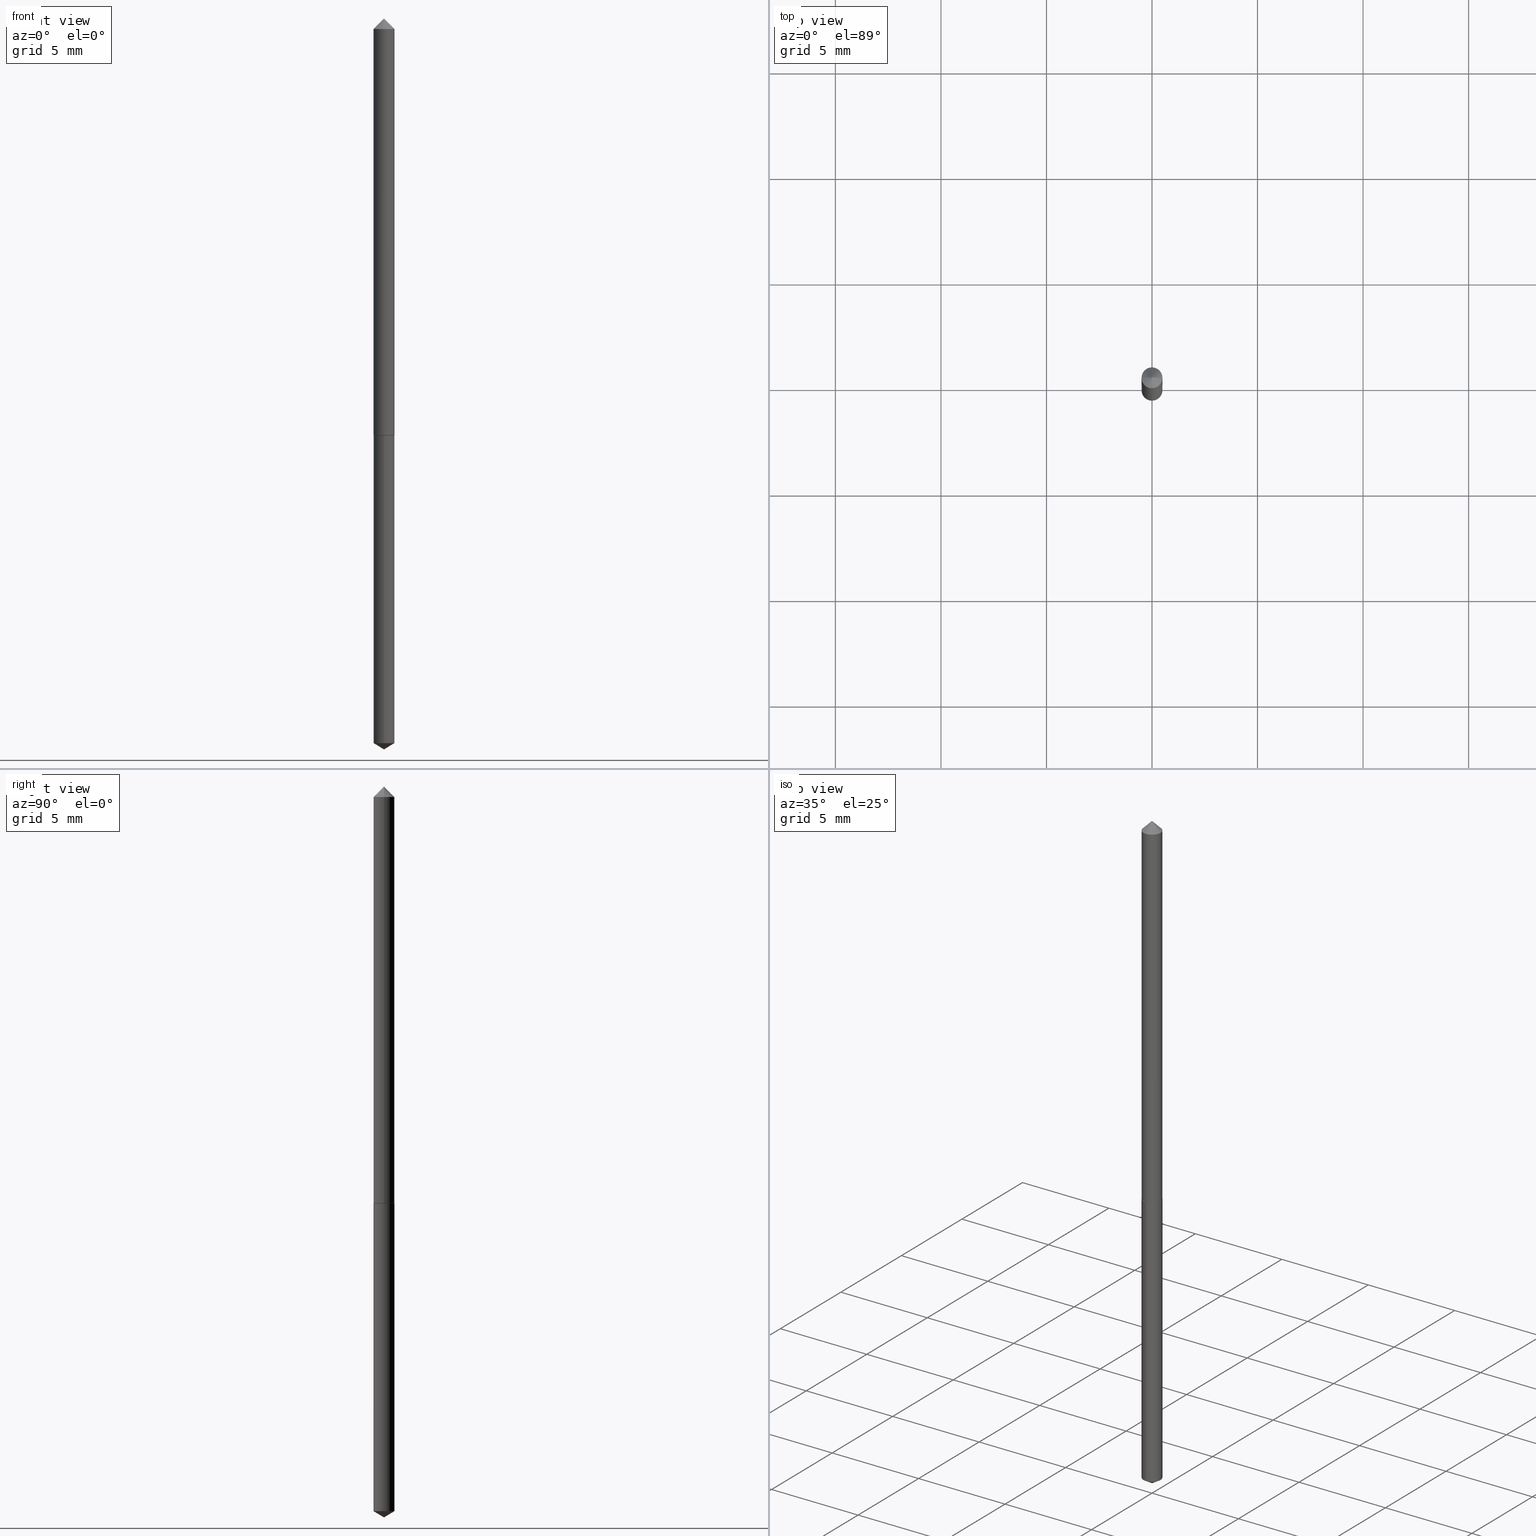
[diagram: canonical four-view strip — front | top / right | iso, engineering-drawing reading convention]
A machine part, canonical four-view strip (front | top / right | iso — engineering-drawing reading convention). The complete STEP part file that produces these views, byte-faithful:
ISO-10303-21;
HEADER;
FILE_DESCRIPTION (( 'STEP AP203' ),
    '1' );
FILE_NAME ('51061.STEP',
    '2024-04-22T18:21:17',
    ( '' ),
    ( '' ),
    'SwSTEP 2.0',
    'SolidWorks 2023',
    '' );
FILE_SCHEMA (( 'CONFIG_CONTROL_DESIGN' ));
ENDSEC;

DATA;
#1 = CARTESIAN_POINT ( 'NONE',  ( -1.361677722148628817E-16, -0.01950000000000275124, -0.7889999999999999236 ) ) ;
#2 = DIRECTION ( 'NONE',  ( -2.445437279729985781E-29, 3.491526486521295773E-15, 1.000000000000000000 ) ) ;
#3 = ORIENTED_EDGE ( 'NONE', *, *, #63, .F. ) ;
#4 = ADVANCED_FACE ( 'NONE', ( #228 ), #235, .F. ) ;
#5 = CARTESIAN_POINT ( 'NONE',  ( 1.928252153676979944E-29, -2.753033035677819991E-15, -0.7884999999999999787 ) ) ;
#6 = EDGE_LOOP ( 'NONE', ( #335, #288 ) ) ;
#7 = DIRECTION ( 'NONE',  ( -2.445437279729985501E-29, 3.491526486521295773E-15, 1.000000000000000000 ) ) ;
#8 = PRODUCT_DEFINITION ( 'UNKNOWN', '', #292, #323 ) ;
#9 = LOCAL_TIME ( 14, 21, 17.00000000000000000, #19 ) ;
#10 = CYLINDRICAL_SURFACE ( 'NONE', #319, 0.01949999999999999997 ) ;
#11 = COORDINATED_UNIVERSAL_TIME_OFFSET ( 5, 0, .BEHIND. ) ;
#12 = EDGE_CURVE ( 'NONE', #149, #59, #290, .T. ) ;
#13 = LINE ( 'NONE', #274, #56 ) ;
#14 = CARTESIAN_POINT ( 'NONE',  ( 7.642090019328602662E-31, -1.091087918388490267E-16, -0.03125000000000020817 ) ) ;
#15 = AXIS2_PLACEMENT_3D ( 'NONE', #180, #129, #36 ) ;
#16 = AXIS2_PLACEMENT_3D ( 'NONE', #5, #119, #81 ) ;
#17 = EDGE_CURVE ( 'NONE', #92, #176, #13, .T. ) ;
#18 = ORIENTED_EDGE ( 'NONE', *, *, #300, .F. ) ;
#19 = COORDINATED_UNIVERSAL_TIME_OFFSET ( 5, 0, .BEHIND. ) ;
#20 = ORIENTED_EDGE ( 'NONE', *, *, #308, .T. ) ;
#21 = CARTESIAN_POINT ( 'NONE',  ( 1.929474888080072746E-29, -2.754778776347241889E-15, -0.7889999999999999236 ) ) ;
#22 = CIRCLE ( 'NONE', #211, 0.01949999999999999997 ) ;
#23 = ORIENTED_EDGE ( 'NONE', *, *, #221, .T. ) ;
#24 = CARTESIAN_POINT ( 'NONE',  ( 7.642090019328602662E-31, -1.091087918388490267E-16, -0.03125000000000020817 ) ) ;
#25 = CALENDAR_DATE ( 2024, 22, 4 ) ;
#26 = CALENDAR_DATE ( 2024, 22, 4 ) ;
#27 = APPLICATION_PROTOCOL_DEFINITION ( 'international standard', 'config_control_design', 1994, #253 ) ;
#28 = AXIS2_PLACEMENT_3D ( 'NONE', #342, #199, #147 ) ;
#29 = DIRECTION ( 'NONE',  ( 6.982962677686265922E-15, 1.000000000000000000, -3.491526486521295773E-15 ) ) ;
#30 = AXIS2_PLACEMENT_3D ( 'NONE', #295, #94, #326 ) ;
#31 = ORIENTED_EDGE ( 'NONE', *, *, #55, .T. ) ;
#32 = DIRECTION ( 'NONE',  ( -2.445437279729985781E-29, 3.491526486521295773E-15, 1.000000000000000000 ) ) ;
#33 = AXIS2_PLACEMENT_3D ( 'NONE', #256, #34, #86 ) ;
#34 = DIRECTION ( 'NONE',  ( -2.445468806185136597E-29, 3.491481338843145583E-15, 1.000000000000000000 ) ) ;
#35 = ORIENTED_EDGE ( 'NONE', *, *, #358, .F. ) ;
#36 = DIRECTION ( 'NONE',  ( 1.000000000000000000, -6.982962677686265922E-15, 4.876176775795935793E-29 ) ) ;
#37 = SHAPE_DEFINITION_REPRESENTATION ( #49, #131 ) ;
#38 = PERSON_AND_ORGANIZATION_ROLE ( 'classification_officer' ) ;
#39 = DIRECTION ( 'NONE',  ( -1.000000000000000000, 6.982962677686265922E-15, 0.000000000000000000 ) ) ;
#40 = APPROVAL ( #278, 'UNSPECIFIED' ) ;
#41 = AXIS2_PLACEMENT_3D ( 'NONE', #286, #121, #229 ) ;
#42 = DIRECTION ( 'NONE',  ( -6.982962677686264344E-15, -1.000000000000000000, 0.000000000000000000 ) ) ;
#43 = EDGE_CURVE ( 'NONE', #176, #282, #237, .T. ) ;
#44 = FACE_OUTER_BOUND ( 'NONE', #95, .T. ) ;
#45 = PERSON ( 'UNSPECIFIED', 'UNSPECIFIED', 'UNSPECIFIED', ('UNSPECIFIED'), ('UNSPECIFIED'), ('UNSPECIFIED') ) ;
#46 = ORIENTED_EDGE ( 'NONE', *, *, #178, .T. ) ;
#47 = EDGE_LOOP ( 'NONE', ( #250, #210, #298, #146 ) ) ;
#48 = APPROVAL_ROLE ( '' ) ;
#49 = PRODUCT_DEFINITION_SHAPE ( 'NONE', 'NONE',  #8 ) ;
#50 = DIRECTION ( 'NONE',  ( 1.000000000000000000, 0.000000000000000000, 0.000000000000000000 ) ) ;
#51 = VERTEX_POINT ( 'NONE', #330 ) ;
#52 = CC_DESIGN_PERSON_AND_ORGANIZATION_ASSIGNMENT ( #302, #187, ( #8 ) ) ;
#53 = DIRECTION ( 'NONE',  ( -2.445437279729985781E-29, 3.491526486521295773E-15, 1.000000000000000000 ) ) ;
#54 = LENGTH_MEASURE_WITH_UNIT ( LENGTH_MEASURE( 0.02539999999999999897 ), #102 );
#55 = EDGE_CURVE ( 'NONE', #159, #282, #71, .T. ) ;
#56 = VECTOR ( 'NONE', #132, 39.37007874015748143 ) ;
#57 = VECTOR ( 'NONE', #350, 39.37007874015748143 ) ;
#58 = CC_DESIGN_PERSON_AND_ORGANIZATION_ASSIGNMENT ( #216, #143, ( #292 ) ) ;
#59 = VERTEX_POINT ( 'NONE', #188 ) ;
#60 = ADVANCED_FACE ( 'NONE', ( #304 ), #87, .T. ) ;
#61 = CONICAL_SURFACE ( 'NONE', #30, 65.52281426576830370, 1.029744258676653645 ) ;
#62 = ORIENTED_EDGE ( 'NONE', *, *, #289, .T. ) ;
#63 = EDGE_CURVE ( 'NONE', #59, #341, #268, .T. ) ;
#64 = APPROVAL_STATUS ( 'not_yet_approved' ) ;
#65 = EDGE_CURVE ( 'NONE', #282, #176, #193, .T. ) ;
#66 = FACE_OUTER_BOUND ( 'NONE', #82, .T. ) ;
#67 = CARTESIAN_POINT ( 'NONE',  ( 1.928252153676979944E-29, -2.753033035677819991E-15, -0.7884999999999999787 ) ) ;
#68 = ORIENTED_EDGE ( 'NONE', *, *, #74, .T. ) ;
#69 = AXIS2_PLACEMENT_3D ( 'NONE', #277, #144, #105 ) ;
#70 = LINE ( 'NONE', #160, #127 ) ;
#71 = LINE ( 'NONE', #299, #196 ) ;
#72 = ORIENTED_EDGE ( 'NONE', *, *, #142, .T. ) ;
#73 = CARTESIAN_POINT ( 'NONE',  ( 0.000000000000000000, 0.000000000000000000, 0.000000000000000000 ) ) ;
#74 = EDGE_CURVE ( 'NONE', #149, #341, #271, .T. ) ;
#75 = CARTESIAN_POINT ( 'NONE',  ( 1.929474888080072746E-29, -2.754778776347241889E-15, -0.7889999999999999236 ) ) ;
#76 = CALENDAR_DATE ( 2024, 22, 4 ) ;
#77 = ADVANCED_FACE ( 'NONE', ( #66 ), #151, .T. ) ;
#78 = DIRECTION ( 'NONE',  ( -2.445468806185136877E-29, 3.491481338843145188E-15, 1.000000000000000000 ) ) ;
#79 = CC_DESIGN_APPROVAL ( #40, ( #8 ) ) ;
#80 = CARTESIAN_POINT ( 'NONE',  ( 0.01950000000000009365, -2.889200807892702791E-15, -0.7884999999999999787 ) ) ;
#81 = DIRECTION ( 'NONE',  ( 1.000000000000000000, -6.982962677686273810E-15, 0.000000000000000000 ) ) ;
#82 = EDGE_LOOP ( 'NONE', ( #284, #245, #362 ) ) ;
#83 = ORIENTED_EDGE ( 'NONE', *, *, #74, .F. ) ;
#84 = CONICAL_SURFACE ( 'NONE', #296, 0.01950000000000009365, 0.7853981633973118326 ) ;
#85 = DATE_AND_TIME ( #226, #194 ) ;
#86 = DIRECTION ( 'NONE',  ( 1.000000000000000000, -6.982962677686273810E-15, 0.000000000000000000 ) ) ;
#87 = CONICAL_SURFACE ( 'NONE', #33, 0.01950000000000009365, 0.7853981633973118326 ) ;
#88 = DIRECTION ( 'NONE',  ( -2.445468806185136597E-29, 3.491481338843145583E-15, 1.000000000000000000 ) ) ;
#89 = LOCAL_TIME ( 14, 21, 17.00000000000000000, #169 ) ;
#90 = DIRECTION ( 'NONE',  ( -2.445468806185136597E-29, 3.491481338843145583E-15, 1.000000000000000000 ) ) ;
#91 = UNCERTAINTY_MEASURE_WITH_UNIT (LENGTH_MEASURE( 1.000000000000000082E-05 ), #244, 'distance_accuracy_value', 'NONE');
#92 = VERTEX_POINT ( 'NONE', #155 ) ;
#93 = PRODUCT ( '51061', '51061', '', ( #338 ) ) ;
#94 = DIRECTION ( 'NONE',  ( -2.445437279729985781E-29, 3.491526486521295773E-15, 1.000000000000000000 ) ) ;
#95 = EDGE_LOOP ( 'NONE', ( #173, #23, #243, #35 ) ) ;
#96 = VECTOR ( 'NONE', #322, 39.37007874015748854 ) ;
#97 = APPROVAL_PERSON_ORGANIZATION ( #166, #152, #48 ) ;
#98 = DIRECTION ( 'NONE',  ( -2.445437279729985501E-29, 3.491526486521295773E-15, 1.000000000000000000 ) ) ;
#99 = FACE_OUTER_BOUND ( 'NONE', #139, .T. ) ;
#100 = CARTESIAN_POINT ( 'NONE',  ( 0.000000000000000000, 0.000000000000000000, 0.000000000000000000 ) ) ;
#101 = ORIENTED_EDGE ( 'NONE', *, *, #337, .F. ) ;
#102 =( LENGTH_UNIT ( ) NAMED_UNIT ( * ) SI_UNIT ( $, .METRE. ) );
#103 = ORIENTED_EDGE ( 'NONE', *, *, #358, .T. ) ;
#104 = FACE_OUTER_BOUND ( 'NONE', #329, .T. ) ;
#105 = DIRECTION ( 'NONE',  ( 1.000000000000000000, -6.982962677686273810E-15, 0.000000000000000000 ) ) ;
#106 = CC_DESIGN_PERSON_AND_ORGANIZATION_ASSIGNMENT ( #307, #170, ( #93 ) ) ;
#107 = CLOSED_SHELL ( 'NONE', ( #305, #218, #236, #287, #168 ) ) ;
#108 = DIRECTION ( 'NONE',  ( 0.000000000000000000, 0.000000000000000000, 1.000000000000000000 ) ) ;
#109 = LOCAL_TIME ( 14, 21, 17.00000000000000000, #11 ) ;
#110 =( NAMED_UNIT ( * ) SI_UNIT ( $, .STERADIAN. ) SOLID_ANGLE_UNIT ( ) );
#111 = DIRECTION ( 'NONE',  ( -0.7071067811864509833, 7.493145998870005484E-15, 0.7071067811866440511 ) ) ;
#112 = CARTESIAN_POINT ( 'NONE',  ( 1.929474888080072746E-29, -2.754778776347241889E-15, -0.7889999999999999236 ) ) ;
#113 = FACE_OUTER_BOUND ( 'NONE', #200, .T. ) ;
#114 = DIRECTION ( 'NONE',  ( -6.982962677686264344E-15, -1.000000000000000000, 0.000000000000000000 ) ) ;
#115 = VERTEX_POINT ( 'NONE', #128 ) ;
#116 = CIRCLE ( 'NONE', #69, 0.01950000000000009365 ) ;
#117 = LINE ( 'NONE', #347, #57 ) ;
#118 = DIMENSIONAL_EXPONENTS ( 1.000000000000000000, 0.000000000000000000, 0.000000000000000000, 0.000000000000000000, 0.000000000000000000, 0.000000000000000000, 0.000000000000000000 ) ;
#119 = DIRECTION ( 'NONE',  ( -2.445468806185136597E-29, 3.491481338843145583E-15, 1.000000000000000000 ) ) ;
#120 = DIRECTION ( 'NONE',  ( 0.7071067811864509833, -2.468850131081245741E-15, 0.7071067811866440511 ) ) ;
#121 = DIRECTION ( 'NONE',  ( -2.445437279729985781E-29, 3.491526486521295773E-15, 1.000000000000000000 ) ) ;
#122 = CALENDAR_DATE ( 2024, 22, 4 ) ;
#123 = DATE_AND_TIME ( #122, #109 ) ;
#124 = CARTESIAN_POINT ( 'NONE',  ( 0.01950000000000009365, -2.889200807892702791E-15, -0.7884999999999999787 ) ) ;
#125 = EDGE_CURVE ( 'NONE', #341, #59, #291, .T. ) ;
#126 = VECTOR ( 'NONE', #7, 39.37007874015748143 ) ;
#127 = VECTOR ( 'NONE', #98, 39.37007874015748143 ) ;
#128 = CARTESIAN_POINT ( 'NONE',  ( 0.01900000000000005851, -2.887455067223281682E-15, -0.7890000000000001457 ) ) ;
#129 = DIRECTION ( 'NONE',  ( -2.438088387897960049E-29, 3.491481338843145188E-15, 1.000000000000000000 ) ) ;
#130 = ORIENTED_EDGE ( 'NONE', *, *, #63, .T. ) ;
#131 = ADVANCED_BREP_SHAPE_REPRESENTATION ( '51061', ( #258, #141, #165 ), #317 ) ;
#132 = DIRECTION ( 'NONE',  ( -0.7071067811865453523, 2.468850131082234184E-15, -0.7071067811865496822 ) ) ;
#133 = CARTESIAN_POINT ( 'NONE',  ( -1.361677722148488301E-16, -0.01950000000000476352, -1.363283217928962454 ) ) ;
#134 = DIRECTION ( 'NONE',  ( -2.445468806185136597E-29, 3.491481338843145583E-15, 1.000000000000000000 ) ) ;
#135 = DIRECTION ( 'NONE',  ( -2.445468806185136877E-29, 3.491481338843145188E-15, 1.000000000000000000 ) ) ;
#136 = CC_DESIGN_APPROVAL ( #294, ( #153 ) ) ;
#137 = COORDINATED_UNIVERSAL_TIME_OFFSET ( 5, 0, .BEHIND. ) ;
#138 = CARTESIAN_POINT ( 'NONE',  ( -0.01950000000000009365, -2.614477202204599937E-15, -0.7884999999999999787 ) ) ;
#139 = EDGE_LOOP ( 'NONE', ( #189, #20, #357 ) ) ;
#140 = EDGE_LOOP ( 'NONE', ( #198, #62 ) ) ;
#141 = MANIFOLD_SOLID_BREP ( 'Body-Move/Copy2[2]', #281 ) ;
#142 = EDGE_CURVE ( 'NONE', #59, #275, #231, .T. ) ;
#143 = PERSON_AND_ORGANIZATION_ROLE ( 'creator' ) ;
#144 = DIRECTION ( 'NONE',  ( -2.445468806185136597E-29, 3.491481338843145583E-15, 1.000000000000000000 ) ) ;
#145 = VECTOR ( 'NONE', #120, 39.37007874015748143 ) ;
#146 = ORIENTED_EDGE ( 'NONE', *, *, #55, .F. ) ;
#147 = DIRECTION ( 'NONE',  ( 1.000000000000000000, -6.982962677686267499E-15, 4.876176775795936353E-29 ) ) ;
#148 = AXIS2_PLACEMENT_3D ( 'NONE', #100, #339, #279 ) ;
#149 = VERTEX_POINT ( 'NONE', #202 ) ;
#150 = EDGE_LOOP ( 'NONE', ( #283, #46, #18, #331 ) ) ;
#151 = CONICAL_SURFACE ( 'NONE', #246, 0.01950000000000000344, 0.7853981633974452814 ) ;
#152 = APPROVAL ( #363, 'UNSPECIFIED' ) ;
#153 = SECURITY_CLASSIFICATION ( '', '', #204 ) ;
#154 = PERSON_AND_ORGANIZATION_ROLE ( 'design_supplier' ) ;
#155 = CARTESIAN_POINT ( 'NONE',  ( 2.873425847267554913E-31, -4.102490573140724439E-17, -0.01175000000000007983 ) ) ;
#156 = FACE_OUTER_BOUND ( 'NONE', #140, .T. ) ;
#157 = CC_DESIGN_PERSON_AND_ORGANIZATION_ASSIGNMENT ( #345, #38, ( #153 ) ) ;
#158 = AXIS2_PLACEMENT_3D ( 'NONE', #293, #88, #240 ) ;
#159 = VERTEX_POINT ( 'NONE', #124 ) ;
#160 = CARTESIAN_POINT ( 'NONE',  ( -1.361677722148628817E-16, -0.01950000000000275124, -0.7889999999999999236 ) ) ;
#161 = PERSON_AND_ORGANIZATION ( #45, #223 ) ;
#162 = EDGE_LOOP ( 'NONE', ( #208, #72, #222, #266 ) ) ;
#163 = ORIENTED_EDGE ( 'NONE', *, *, #12, .F. ) ;
#164 = DIRECTION ( 'NONE',  ( 1.000000000000000000, -6.982962677686260400E-15, 0.000000000000000000 ) ) ;
#165 = AXIS2_PLACEMENT_3D ( 'NONE', #73, #108, #50 ) ;
#166 = PERSON_AND_ORGANIZATION ( #45, #223 ) ;
#167 = DIRECTION ( 'NONE',  ( -6.982962677686264344E-15, -1.000000000000000000, 3.468864327941600919E-15 ) ) ;
#168 = ADVANCED_FACE ( 'NONE', ( #156 ), #212, .F. ) ;
#169 = COORDINATED_UNIVERSAL_TIME_OFFSET ( 5, 0, .BEHIND. ) ;
#170 = PERSON_AND_ORGANIZATION_ROLE ( 'design_owner' ) ;
#171 = AXIS2_PLACEMENT_3D ( 'NONE', #234, #90, #206 ) ;
#172 = LINE ( 'NONE', #138, #257 ) ;
#173 = ORIENTED_EDGE ( 'NONE', *, *, #178, .F. ) ;
#174 = COORDINATED_UNIVERSAL_TIME_OFFSET ( 5, 0, .BEHIND. ) ;
#175 = ADVANCED_FACE ( 'NONE', ( #44 ), #84, .T. ) ;
#176 = VERTEX_POINT ( 'NONE', #259 ) ;
#177 = AXIS2_PLACEMENT_3D ( 'NONE', #75, #53, #311 ) ;
#178 = EDGE_CURVE ( 'NONE', #325, #51, #172, .T. ) ;
#179 = APPROVAL_ROLE ( '' ) ;
#180 = CARTESIAN_POINT ( 'NONE',  ( -2.031386624105738572E-29, -8.426957900034328420E-15, -0.7889999999999999236 ) ) ;
#181 = CIRCLE ( 'NONE', #16, 0.01950000000000009365 ) ;
#182 = DIRECTION ( 'NONE',  ( 2.445468806185136597E-29, -3.491481338843145583E-15, -1.000000000000000000 ) ) ;
#183 = DIRECTION ( 'NONE',  ( 6.090539988449776858E-15, 0.8571673007021136659, 0.5150380749100519351 ) ) ;
#184 = CONICAL_SURFACE ( 'NONE', #197, 0.01950000000000000344, 0.7853981633974452814 ) ;
#185 = DIRECTION ( 'NONE',  ( 1.000000000000000000, -6.982962677686265922E-15, 0.000000000000000000 ) ) ;
#186 = DIRECTION ( 'NONE',  ( -2.445468806185136597E-29, 3.491481338843145583E-15, 1.000000000000000000 ) ) ;
#187 = PERSON_AND_ORGANIZATION_ROLE ( 'creator' ) ;
#188 = CARTESIAN_POINT ( 'NONE',  ( 1.385558334732528161E-16, 0.01949999999999523989, -1.363283217928962454 ) ) ;
#189 = ORIENTED_EDGE ( 'NONE', *, *, #17, .F. ) ;
#190 = APPROVAL_ROLE ( '' ) ;
#191 = DIRECTION ( 'NONE',  ( -2.445437279729985781E-29, 3.491526486521295773E-15, 1.000000000000000000 ) ) ;
#192 = EDGE_CURVE ( 'NONE', #115, #159, #327, .T. ) ;
#193 = CIRCLE ( 'NONE', #158, 0.01950000000000000344 ) ;
#194 = LOCAL_TIME ( 14, 21, 17.00000000000000000, #174 ) ;
#195 = DATE_TIME_ROLE ( 'creation_date' ) ;
#196 = VECTOR ( 'NONE', #135, 39.37007874015748143 ) ;
#197 = AXIS2_PLACEMENT_3D ( 'NONE', #220, #254, #214 ) ;
#198 = ORIENTED_EDGE ( 'NONE', *, *, #346, .T. ) ;
#199 = DIRECTION ( 'NONE',  ( -2.445468806185136597E-29, 3.491481338843145583E-15, 1.000000000000000000 ) ) ;
#200 = EDGE_LOOP ( 'NONE', ( #217, #130, #264, #270 ) ) ;
#201 = CARTESIAN_POINT ( 'NONE',  ( 1.929474888080072746E-29, -2.754778776347241889E-15, -0.7889999999999999236 ) ) ;
#202 = CARTESIAN_POINT ( 'NONE',  ( 3.362476259628730133E-29, -4.800848918966782428E-15, -1.375000000000000000 ) ) ;
#203 = ORIENTED_EDGE ( 'NONE', *, *, #125, .F. ) ;
#204 = SECURITY_CLASSIFICATION_LEVEL ( 'unclassified' ) ;
#205 = CARTESIAN_POINT ( 'NONE',  ( 3.362476259628729573E-29, -4.800848918966780850E-15, -1.375000000000000000 ) ) ;
#206 = DIRECTION ( 'NONE',  ( 1.000000000000000000, -6.982962677686260400E-15, 0.000000000000000000 ) ) ;
#207 = DIRECTION ( 'NONE',  ( -2.445437279729985781E-29, 3.491526486521295773E-15, 1.000000000000000000 ) ) ;
#208 = ORIENTED_EDGE ( 'NONE', *, *, #125, .T. ) ;
#209 = DIRECTION ( 'NONE',  ( 1.000000000000000000, -6.982962677686273810E-15, 0.000000000000000000 ) ) ;
#210 = ORIENTED_EDGE ( 'NONE', *, *, #337, .T. ) ;
#211 = AXIS2_PLACEMENT_3D ( 'NONE', #112, #2, #114 ) ;
#212 = PLANE ( 'NONE',  #343 ) ;
#213 = ADVANCED_FACE ( 'NONE', ( #261 ), #348, .T. ) ;
#214 = DIRECTION ( 'NONE',  ( -1.000000000000000000, 6.982962677686265922E-15, 0.000000000000000000 ) ) ;
#215 = CARTESIAN_POINT ( 'NONE',  ( 0.01950000000000000344, -2.452765640537312108E-16, -0.03125000000000020817 ) ) ;
#216 = PERSON_AND_ORGANIZATION ( #45, #223 ) ;
#217 = ORIENTED_EDGE ( 'NONE', *, *, #142, .F. ) ;
#218 = ADVANCED_FACE ( 'NONE', ( #104 ), #239, .T. ) ;
#219 = CARTESIAN_POINT ( 'NONE',  ( -9.291455712308421425E-28, 1.326608594002400941E-13, 37.99507874015748143 ) ) ;
#220 = CARTESIAN_POINT ( 'NONE',  ( 7.642090019328602662E-31, -1.091087918388490267E-16, -0.03125000000000020817 ) ) ;
#221 = EDGE_CURVE ( 'NONE', #325, #115, #306, .T. ) ;
#222 = ORIENTED_EDGE ( 'NONE', *, *, #346, .F. ) ;
#223 = ORGANIZATION ( 'UNSPECIFIED', 'UNSPECIFIED', '' ) ;
#224 = APPROVAL_DATE_TIME ( #334, #40 ) ;
#225 = CYLINDRICAL_SURFACE ( 'NONE', #238, 0.01949999999999999997 ) ;
#226 = CALENDAR_DATE ( 2024, 22, 4 ) ;
#227 = LINE ( 'NONE', #280, #336 ) ;
#228 = FACE_OUTER_BOUND ( 'NONE', #6, .T. ) ;
#229 = DIRECTION ( 'NONE',  ( -6.982962677686264344E-15, -1.000000000000000000, 0.000000000000000000 ) ) ;
#230 = CIRCLE ( 'NONE', #171, 0.01900000000000005851 ) ;
#231 = LINE ( 'NONE', #313, #126 ) ;
#232 = CARTESIAN_POINT ( 'NONE',  ( 3.362526444612738481E-29, -4.800777675930660534E-15, -1.375000000000000000 ) ) ;
#233 = PERSON_AND_ORGANIZATION ( #45, #223 ) ;
#234 = CARTESIAN_POINT ( 'NONE',  ( 1.929474888080073026E-29, -2.754778776347242283E-15, -0.7890000000000001457 ) ) ;
#235 = PLANE ( 'NONE',  #15 ) ;
#236 = ADVANCED_FACE ( 'NONE', ( #356 ), #61, .T. ) ;
#237 = CIRCLE ( 'NONE', #352, 0.01950000000000000344 ) ;
#238 = AXIS2_PLACEMENT_3D ( 'NONE', #355, #207, #42 ) ;
#239 = CONICAL_SURFACE ( 'NONE', #248, 65.52281426576830370, 1.029744258676653645 ) ;
#240 = DIRECTION ( 'NONE',  ( 1.000000000000000000, -6.982962677686265922E-15, 0.000000000000000000 ) ) ;
#241 = ORIENTED_EDGE ( 'NONE', *, *, #43, .F. ) ;
#242 = DIRECTION ( 'NONE',  ( 2.445437279729985501E-29, -3.491526486521295773E-15, -1.000000000000000000 ) ) ;
#243 = ORIENTED_EDGE ( 'NONE', *, *, #192, .T. ) ;
#244 =( CONVERSION_BASED_UNIT ( 'INCH', #54 ) LENGTH_UNIT ( ) NAMED_UNIT ( #118 ) );
#245 = ORIENTED_EDGE ( 'NONE', *, *, #17, .T. ) ;
#246 = AXIS2_PLACEMENT_3D ( 'NONE', #14, #182, #39 ) ;
#247 = CARTESIAN_POINT ( 'NONE',  ( 1.929474888080073026E-29, -2.754778776347242283E-15, -0.7890000000000001457 ) ) ;
#248 = AXIS2_PLACEMENT_3D ( 'NONE', #219, #191, #167 ) ;
#249 = DATE_AND_TIME ( #25, #272 ) ;
#250 = ORIENTED_EDGE ( 'NONE', *, *, #300, .T. ) ;
#251 = PERSON_AND_ORGANIZATION ( #45, #223 ) ;
#252 = FACE_OUTER_BOUND ( 'NONE', #47, .T. ) ;
#253 = APPLICATION_CONTEXT ( 'configuration controlled 3d designs of mechanical parts and assemblies' ) ;
#254 = DIRECTION ( 'NONE',  ( 2.445468806185136597E-29, -3.491481338843145583E-15, -1.000000000000000000 ) ) ;
#255 = CARTESIAN_POINT ( 'NONE',  ( -0.01900000000000005851, -2.617126429378711138E-15, -0.7890000000000001457 ) ) ;
#256 = CARTESIAN_POINT ( 'NONE',  ( 1.928252153676979944E-29, -2.753033035677819991E-15, -0.7884999999999999787 ) ) ;
#257 = VECTOR ( 'NONE', #111, 39.37007874015748143 ) ;
#258 = MANIFOLD_SOLID_BREP ( 'Body-Move/Copy2[1]', #107 ) ;
#259 = CARTESIAN_POINT ( 'NONE',  ( -0.01950000000000000344, -1.292515080285113506E-15, -0.03125000000000020817 ) ) ;
#260 = DATE_TIME_ROLE ( 'classification_date' ) ;
#261 = FACE_OUTER_BOUND ( 'NONE', #312, .T. ) ;
#262 = EDGE_CURVE ( 'NONE', #341, #333, #70, .T. ) ;
#263 = CARTESIAN_POINT ( 'NONE',  ( 3.333848478326857315E-29, -4.759903842510895348E-15, -1.363283217928962454 ) ) ;
#264 = ORIENTED_EDGE ( 'NONE', *, *, #262, .T. ) ;
#265 = DIRECTION ( 'NONE',  ( -6.982962677686264344E-15, -1.000000000000000000, 0.000000000000000000 ) ) ;
#266 = ORIENTED_EDGE ( 'NONE', *, *, #262, .F. ) ;
#267 = PRODUCT_RELATED_PRODUCT_CATEGORY ( 'detail', '', ( #93 ) ) ;
#268 = CIRCLE ( 'NONE', #41, 0.01949999999999999997 ) ;
#269 = CIRCLE ( 'NONE', #177, 0.01949999999999999997 ) ;
#270 = ORIENTED_EDGE ( 'NONE', *, *, #289, .F. ) ;
#271 = LINE ( 'NONE', #205, #96 ) ;
#272 = LOCAL_TIME ( 14, 21, 17.00000000000000000, #137 ) ;
#273 = ORIENTED_EDGE ( 'NONE', *, *, #12, .T. ) ;
#274 = CARTESIAN_POINT ( 'NONE',  ( -0.01950000000000000344, 2.705898037603319130E-17, -0.03125000000000020817 ) ) ;
#275 = VERTEX_POINT ( 'NONE', #360 ) ;
#276 = CC_DESIGN_APPROVAL ( #152, ( #292 ) ) ;
#277 = CARTESIAN_POINT ( 'NONE',  ( 1.928252153676979944E-29, -2.753033035677819991E-15, -0.7884999999999999787 ) ) ;
#278 = APPROVAL_STATUS ( 'not_yet_approved' ) ;
#279 = DIRECTION ( 'NONE',  ( 1.000000000000000000, -6.982962677686267499E-15, 4.876176775795936353E-29 ) ) ;
#280 = CARTESIAN_POINT ( 'NONE',  ( -0.01950000000000004854, 1.385558334732198812E-16, -9.591923425997091666E-31 ) ) ;
#281 = CLOSED_SHELL ( 'NONE', ( #349, #320, #60, #4, #175, #213, #77 ) ) ;
#282 = VERTEX_POINT ( 'NONE', #215 ) ;
#283 = ORIENTED_EDGE ( 'NONE', *, *, #315, .T. ) ;
#284 = ORIENTED_EDGE ( 'NONE', *, *, #308, .F. ) ;
#285 = AXIS2_PLACEMENT_3D ( 'NONE', #263, #32, #318 ) ;
#286 = CARTESIAN_POINT ( 'NONE',  ( 3.333848478326857315E-29, -4.759903842510895348E-15, -1.363283217928962454 ) ) ;
#287 = ADVANCED_FACE ( 'NONE', ( #113 ), #225, .T. ) ;
#288 = ORIENTED_EDGE ( 'NONE', *, *, #221, .F. ) ;
#289 = EDGE_CURVE ( 'NONE', #275, #333, #22, .T. ) ;
#290 = LINE ( 'NONE', #232, #316 ) ;
#291 = CIRCLE ( 'NONE', #285, 0.01949999999999999997 ) ;
#292 = PRODUCT_DEFINITION_FORMATION_WITH_SPECIFIED_SOURCE ( 'ANY', '', #93, .NOT_KNOWN. ) ;
#293 = CARTESIAN_POINT ( 'NONE',  ( 7.642090019328602662E-31, -1.091087918388490267E-16, -0.03125000000000020817 ) ) ;
#294 = APPROVAL ( #64, 'UNSPECIFIED' ) ;
#295 = CARTESIAN_POINT ( 'NONE',  ( -9.291455712308421425E-28, 1.326608594002400941E-13, 37.99507874015748143 ) ) ;
#296 = AXIS2_PLACEMENT_3D ( 'NONE', #67, #134, #209 ) ;
#297 = CYLINDRICAL_SURFACE ( 'NONE', #148, 0.01950000000000004854 ) ;
#298 = ORIENTED_EDGE ( 'NONE', *, *, #65, .F. ) ;
#299 = CARTESIAN_POINT ( 'NONE',  ( 0.01950000000000004854, -1.361677722148825539E-16, 9.508544712802099179E-31 ) ) ;
#300 = EDGE_CURVE ( 'NONE', #159, #51, #181, .T. ) ;
#301 = DIRECTION ( 'NONE',  ( -2.445468806185136597E-29, 3.491481338843145583E-15, 1.000000000000000000 ) ) ;
#302 = PERSON_AND_ORGANIZATION ( #45, #223 ) ;
#303 = EDGE_LOOP ( 'NONE', ( #163, #68, #3 ) ) ;
#304 = FACE_OUTER_BOUND ( 'NONE', #150, .T. ) ;
#305 = ADVANCED_FACE ( 'NONE', ( #314 ), #10, .T. ) ;
#306 = CIRCLE ( 'NONE', #328, 0.01900000000000005851 ) ;
#307 = PERSON_AND_ORGANIZATION ( #45, #223 ) ;
#308 = EDGE_CURVE ( 'NONE', #92, #282, #117, .T. ) ;
#309 = DATE_AND_TIME ( #76, #89 ) ;
#310 = CC_DESIGN_DATE_AND_TIME_ASSIGNMENT ( #309, #195, ( #8 ) ) ;
#311 = DIRECTION ( 'NONE',  ( -6.982962677686264344E-15, -1.000000000000000000, 0.000000000000000000 ) ) ;
#312 = EDGE_LOOP ( 'NONE', ( #101, #103, #31, #241 ) ) ;
#313 = CARTESIAN_POINT ( 'NONE',  ( 1.385558334732387892E-16, 0.01949999999999724523, -0.7889999999999999236 ) ) ;
#314 = FACE_OUTER_BOUND ( 'NONE', #162, .T. ) ;
#315 = EDGE_CURVE ( 'NONE', #115, #325, #230, .T. ) ;
#316 = VECTOR ( 'NONE', #183, 39.37007874015748143 ) ;
#317 =( GEOMETRIC_REPRESENTATION_CONTEXT ( 3 ) GLOBAL_UNCERTAINTY_ASSIGNED_CONTEXT ( ( #91 ) ) GLOBAL_UNIT_ASSIGNED_CONTEXT ( ( #244, #332, #110 ) ) REPRESENTATION_CONTEXT ( 'NONE', 'WORKASPACE' ) );
#318 = DIRECTION ( 'NONE',  ( -6.982962677686264344E-15, -1.000000000000000000, 0.000000000000000000 ) ) ;
#319 = AXIS2_PLACEMENT_3D ( 'NONE', #201, #351, #265 ) ;
#320 = ADVANCED_FACE ( 'NONE', ( #252 ), #297, .T. ) ;
#321 = APPROVAL_DATE_TIME ( #85, #294 ) ;
#322 = DIRECTION ( 'NONE',  ( -5.985567269335938913E-15, -0.8571673007021100021, 0.5150380749100579303 ) ) ;
#323 = DESIGN_CONTEXT ( 'detailed design', #253, 'design' ) ;
#324 = CC_DESIGN_DATE_AND_TIME_ASSIGNMENT ( #123, #260, ( #153 ) ) ;
#325 = VERTEX_POINT ( 'NONE', #255 ) ;
#326 = DIRECTION ( 'NONE',  ( -6.982962677686264344E-15, -1.000000000000000000, 3.468864327941600919E-15 ) ) ;
#327 = LINE ( 'NONE', #80, #145 ) ;
#328 = AXIS2_PLACEMENT_3D ( 'NONE', #247, #301, #164 ) ;
#329 = EDGE_LOOP ( 'NONE', ( #83, #273, #203 ) ) ;
#330 = CARTESIAN_POINT ( 'NONE',  ( -0.01950000000000009365, -2.614477202204599937E-15, -0.7884999999999999787 ) ) ;
#331 = ORIENTED_EDGE ( 'NONE', *, *, #192, .F. ) ;
#332 =( NAMED_UNIT ( * ) PLANE_ANGLE_UNIT ( ) SI_UNIT ( $, .RADIAN. ) );
#333 = VERTEX_POINT ( 'NONE', #1 ) ;
#334 = DATE_AND_TIME ( #26, #9 ) ;
#335 = ORIENTED_EDGE ( 'NONE', *, *, #315, .F. ) ;
#336 = VECTOR ( 'NONE', #78, 39.37007874015748143 ) ;
#337 = EDGE_CURVE ( 'NONE', #51, #176, #227, .T. ) ;
#338 = MECHANICAL_CONTEXT ( 'NONE', #364, 'mechanical' ) ;
#339 = DIRECTION ( 'NONE',  ( -2.445468806185136597E-29, 3.491481338843145583E-15, 1.000000000000000000 ) ) ;
#340 = APPLICATION_PROTOCOL_DEFINITION ( 'international standard', 'config_control_design', 1994, #364 ) ;
#341 = VERTEX_POINT ( 'NONE', #133 ) ;
#342 = CARTESIAN_POINT ( 'NONE',  ( 0.000000000000000000, 0.000000000000000000, 0.000000000000000000 ) ) ;
#343 = AXIS2_PLACEMENT_3D ( 'NONE', #21, #242, #29 ) ;
#344 = CC_DESIGN_SECURITY_CLASSIFICATION ( #153, ( #292 ) ) ;
#345 = PERSON_AND_ORGANIZATION ( #45, #223 ) ;
#346 = EDGE_CURVE ( 'NONE', #333, #275, #269, .T. ) ;
#347 = CARTESIAN_POINT ( 'NONE',  ( 0.01950000000000000344, -2.428885027953939081E-16, -0.03125000000000020817 ) ) ;
#348 = CYLINDRICAL_SURFACE ( 'NONE', #28, 0.01950000000000004854 ) ;
#349 = ADVANCED_FACE ( 'NONE', ( #99 ), #184, .T. ) ;
#350 = DIRECTION ( 'NONE',  ( 0.7071067811865453523, -7.319954787623248157E-15, -0.7071067811865496822 ) ) ;
#351 = DIRECTION ( 'NONE',  ( -2.445437279729985781E-29, 3.491526486521295773E-15, 1.000000000000000000 ) ) ;
#352 = AXIS2_PLACEMENT_3D ( 'NONE', #24, #186, #185 ) ;
#353 = APPROVAL_PERSON_ORGANIZATION ( #161, #40, #190 ) ;
#354 = CC_DESIGN_PERSON_AND_ORGANIZATION_ASSIGNMENT ( #251, #154, ( #292 ) ) ;
#355 = CARTESIAN_POINT ( 'NONE',  ( 1.929474888080072746E-29, -2.754778776347241889E-15, -0.7889999999999999236 ) ) ;
#356 = FACE_OUTER_BOUND ( 'NONE', #303, .T. ) ;
#357 = ORIENTED_EDGE ( 'NONE', *, *, #65, .T. ) ;
#358 = EDGE_CURVE ( 'NONE', #51, #159, #116, .T. ) ;
#359 = APPROVAL_PERSON_ORGANIZATION ( #233, #294, #179 ) ;
#360 = CARTESIAN_POINT ( 'NONE',  ( 1.385558334732529147E-16, 0.01949999999999724523, -0.7889999999999999236 ) ) ;
#361 = APPROVAL_DATE_TIME ( #249, #152 ) ;
#362 = ORIENTED_EDGE ( 'NONE', *, *, #43, .T. ) ;
#363 = APPROVAL_STATUS ( 'not_yet_approved' ) ;
#364 = APPLICATION_CONTEXT ( 'configuration controlled 3d designs of mechanical parts and assemblies' ) ;
ENDSEC;
END-ISO-10303-21;
